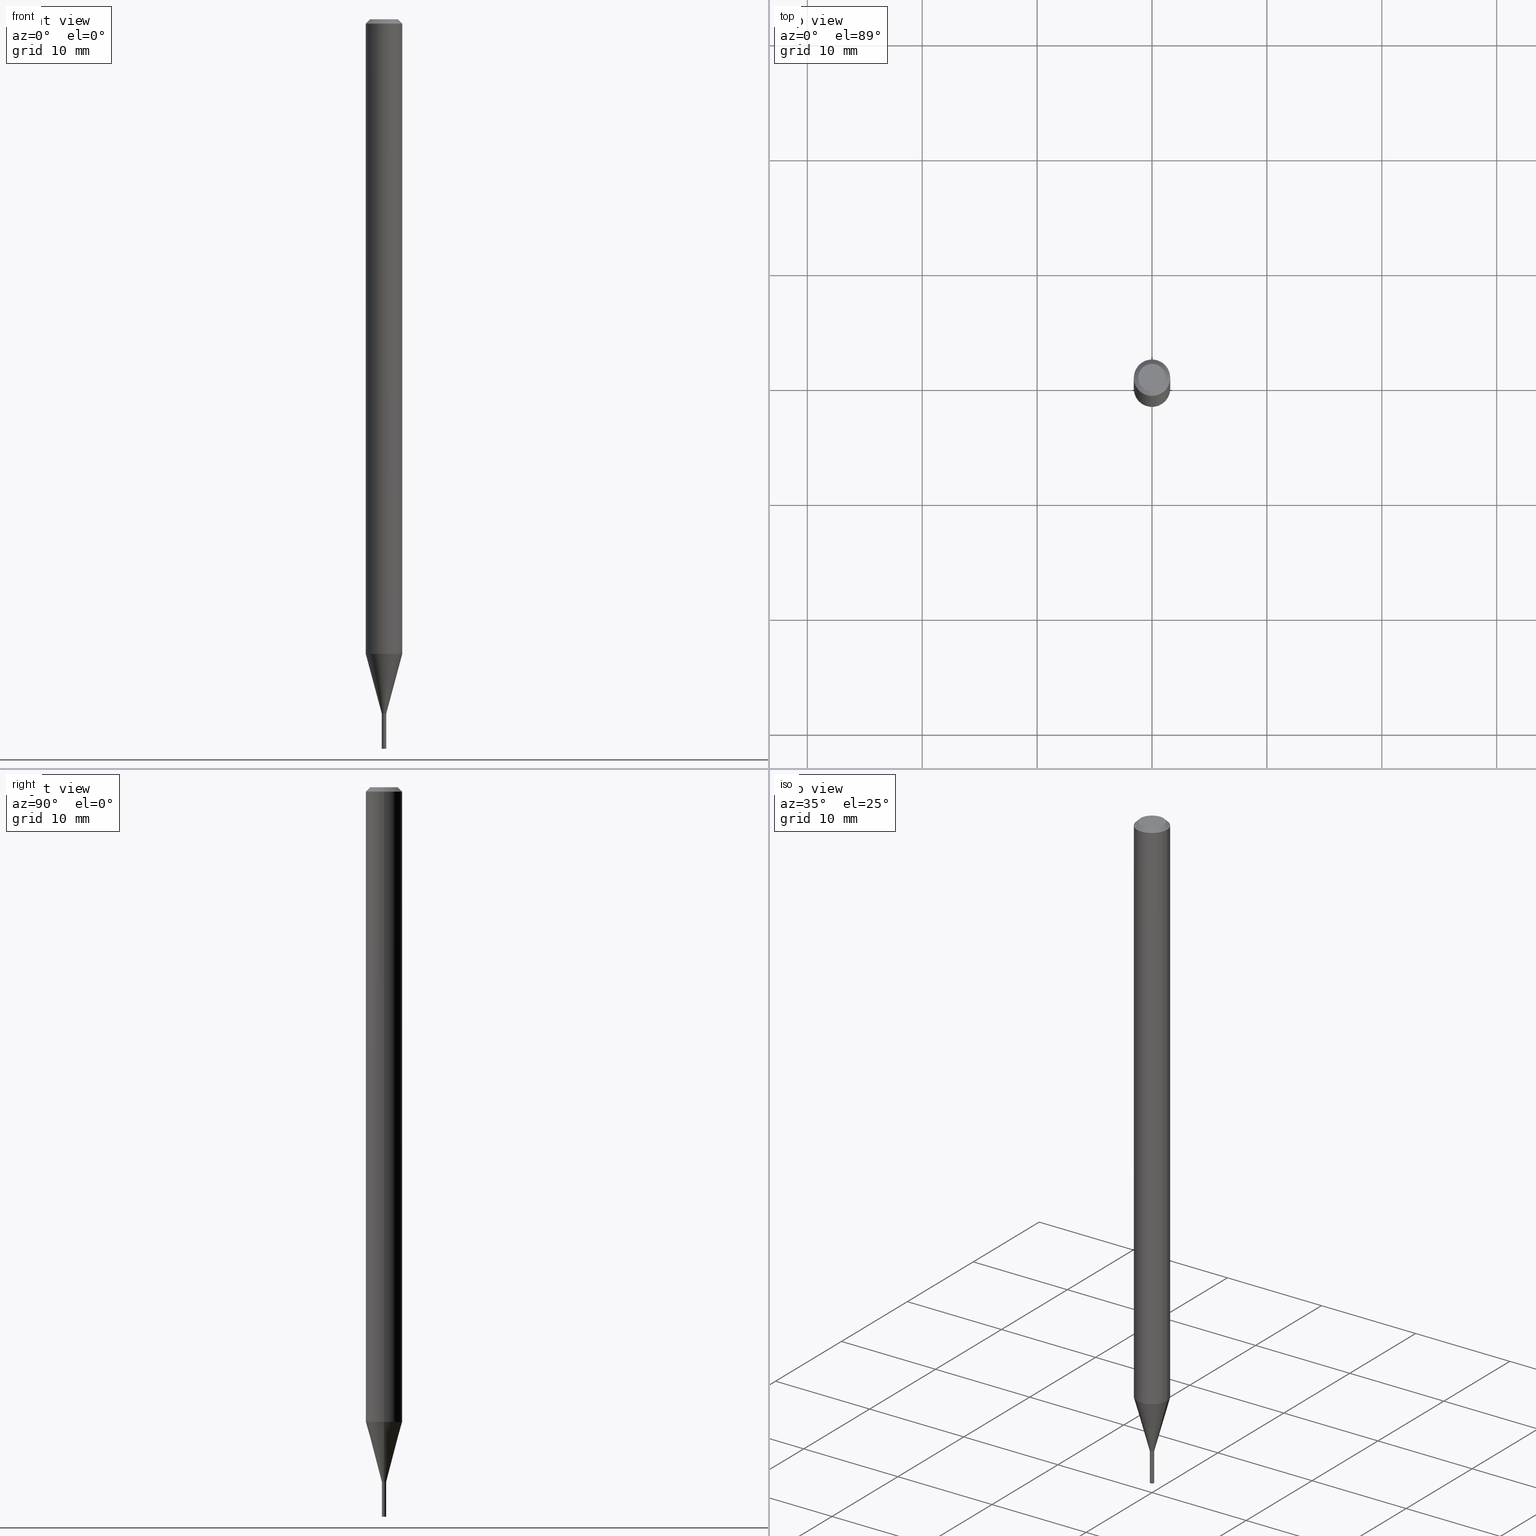
[diagram: canonical four-view strip — front | top / right | iso, engineering-drawing reading convention]
A machine part, canonical four-view strip (front | top / right | iso — engineering-drawing reading convention). The complete STEP part file that produces these views, byte-faithful:
ISO-10303-21;
HEADER;
FILE_DESCRIPTION (( 'STEP AP203' ),
    '1' );
FILE_NAME ('01256.STEP',
    '2024-03-20T00:38:12',
    ( '' ),
    ( '' ),
    'SwSTEP 2.0',
    'SolidWorks 2023',
    '' );
FILE_SCHEMA (( 'CONFIG_CONTROL_DESIGN' ));
ENDSEC;

DATA;
#1 = CARTESIAN_POINT ( 'NONE',  ( 0.06250000000000000000, -4.811533449433679005E-16, -0.01499999999999999944 ) ) ;
#2 = AXIS2_PLACEMENT_3D ( 'NONE', #89, #336, #120 ) ;
#3 = AXIS2_PLACEMENT_3D ( 'NONE', #324, #285, #396 ) ;
#4 = DIRECTION ( 'NONE',  ( 1.000000000000000000, -6.982962677686214646E-15, 0.000000000000000000 ) ) ;
#5 = ADVANCED_FACE ( 'NONE', ( #184 ), #182, .T. ) ;
#6 = DIRECTION ( 'NONE',  ( 1.000000000000000000, -6.982962677686262766E-15, 0.000000000000000000 ) ) ;
#7 = DIRECTION ( 'NONE',  ( -2.445468806185136877E-29, 3.491481338843145188E-15, 1.000000000000000000 ) ) ;
#8 = AXIS2_PLACEMENT_3D ( 'NONE', #72, #387, #30 ) ;
#9 = VERTEX_POINT ( 'NONE', #189 ) ;
#10 = LOCAL_TIME ( 20, 38, 12.00000000000000000, #297 ) ;
#11 = PERSON_AND_ORGANIZATION ( #257, #183 ) ;
#12 = DIRECTION ( 'NONE',  ( -2.445468806185136597E-29, 3.491481338843145583E-15, 1.000000000000000000 ) ) ;
#13 = DATE_AND_TIME ( #331, #458 ) ;
#14 = LOCAL_TIME ( 20, 38, 12.00000000000000000, #125 ) ;
#15 = DIRECTION ( 'NONE',  ( 1.000000000000000000, -6.982962677686266711E-15, 0.000000000000000000 ) ) ;
#16 = EDGE_LOOP ( 'NONE', ( #339, #265, #446, #136 ) ) ;
#17 = ORIENTED_EDGE ( 'NONE', *, *, #121, .T. ) ;
#18 = DIRECTION ( 'NONE',  ( 2.438088387897960049E-29, -3.491481338843145188E-15, -1.000000000000000000 ) ) ;
#19 = ORIENTED_EDGE ( 'NONE', *, *, #121, .F. ) ;
#20 = MANIFOLD_SOLID_BREP ( 'Body-Move/Copy2[1]', #157 ) ;
#21 = CARTESIAN_POINT ( 'NONE',  ( 3.668203209277705088E-31, -5.237222008264718399E-17, -0.01499999999999999944 ) ) ;
#22 = ORIENTED_EDGE ( 'NONE', *, *, #139, .F. ) ;
#23 = PLANE ( 'NONE',  #81 ) ;
#24 = MANIFOLD_SOLID_BREP ( 'Body-Move/Copy2[2]', #282 ) ;
#25 = PLANE ( 'NONE',  #105 ) ;
#26 = VERTEX_POINT ( 'NONE', #338 ) ;
#27 = ADVANCED_FACE ( 'NONE', ( #466 ), #245, .F. ) ;
#28 = ORIENTED_EDGE ( 'NONE', *, *, #420, .F. ) ;
#29 = CARTESIAN_POINT ( 'NONE',  ( 3.668203209277705088E-31, -5.237222008264718399E-17, -0.01499999999999999944 ) ) ;
#30 = DIRECTION ( 'NONE',  ( 1.000000000000000000, -6.982962677686262766E-15, 0.000000000000000000 ) ) ;
#31 = EDGE_CURVE ( 'NONE', #376, #128, #202, .T. ) ;
#32 = ORIENTED_EDGE ( 'NONE', *, *, #75, .T. ) ;
#33 = DIRECTION ( 'NONE',  ( 1.000000000000000000, -6.982962677686216223E-15, 0.000000000000000000 ) ) ;
#34 = AXIS2_PLACEMENT_3D ( 'NONE', #426, #316, #65 ) ;
#35 = CIRCLE ( 'NONE', #231, 0.007499999999999999722 ) ;
#36 = ORIENTED_EDGE ( 'NONE', *, *, #379, .T. ) ;
#37 = FACE_OUTER_BOUND ( 'NONE', #194, .T. ) ;
#38 = ORIENTED_EDGE ( 'NONE', *, *, #113, .F. ) ;
#39 = CARTESIAN_POINT ( 'NONE',  ( 0.006999999999999999278, -8.358606325190491987E-15, -2.380000000000000338 ) ) ;
#40 = CARTESIAN_POINT ( 'NONE',  ( 5.820215758720625190E-29, -8.309725586446686731E-15, -2.379999999999999893 ) ) ;
#41 = LOCAL_TIME ( 20, 38, 12.00000000000000000, #288 ) ;
#42 = DIRECTION ( 'NONE',  ( 1.000000000000000000, -6.982962677686267499E-15, 4.876176775795936353E-29 ) ) ;
#43 = DIRECTION ( 'NONE',  ( 1.000000000000000000, -6.982962677686265922E-15, 4.876176775795935232E-29 ) ) ;
#44 = DIRECTION ( 'NONE',  ( 1.000000000000000000, -6.982962677686216223E-15, 0.000000000000000000 ) ) ;
#45 = SHAPE_DEFINITION_REPRESENTATION ( #327, #101 ) ;
#46 = EDGE_CURVE ( 'NONE', #109, #424, #222, .T. ) ;
#47 = CARTESIAN_POINT ( 'NONE',  ( 0.007499999999999999722, -8.362097806529333416E-15, -2.379999999999999893 ) ) ;
#48 = CIRCLE ( 'NONE', #61, 0.06250000000000000000 ) ;
#49 = MECHANICAL_CONTEXT ( 'NONE', #425, 'mechanical' ) ;
#50 = CALENDAR_DATE ( 2024, 19, 3 ) ;
#51 = DATE_AND_TIME ( #263, #41 ) ;
#52 = ORIENTED_EDGE ( 'NONE', *, *, #55, .F. ) ;
#53 = PERSON_AND_ORGANIZATION_ROLE ( 'design_supplier' ) ;
#54 = AXIS2_PLACEMENT_3D ( 'NONE', #79, #227, #258 ) ;
#55 = EDGE_CURVE ( 'NONE', #64, #242, #412, .T. ) ;
#56 = FACE_OUTER_BOUND ( 'NONE', #63, .T. ) ;
#57 = ORIENTED_EDGE ( 'NONE', *, *, #211, .T. ) ;
#58 = ADVANCED_FACE ( 'NONE', ( #348 ), #25, .F. ) ;
#59 = CARTESIAN_POINT ( 'NONE',  ( -0.06249999999999999306, -7.148965160333359965E-15, -2.174737205583713084 ) ) ;
#60 = DIRECTION ( 'NONE',  ( -2.445468806185136597E-29, 3.491481338843145583E-15, 1.000000000000000000 ) ) ;
#61 = AXIS2_PLACEMENT_3D ( 'NONE', #246, #436, #6 ) ;
#62 = DIRECTION ( 'NONE',  ( -1.000000000000000000, 6.982962677686266711E-15, 0.000000000000000000 ) ) ;
#63 = EDGE_LOOP ( 'NONE', ( #133, #17 ) ) ;
#64 = VERTEX_POINT ( 'NONE', #215 ) ;
#65 = DIRECTION ( 'NONE',  ( 1.000000000000000000, -6.982962677686266711E-15, 4.876176775795935793E-29 ) ) ;
#66 = ADVANCED_FACE ( 'NONE', ( #132 ), #255, .T. ) ;
#67 = DIRECTION ( 'NONE',  ( -2.438088387897960049E-29, 3.491481338843145188E-15, 1.000000000000000000 ) ) ;
#68 = EDGE_CURVE ( 'NONE', #100, #26, #97, .T. ) ;
#69 = DIRECTION ( 'NONE',  ( 1.000000000000000000, -6.982962677686216223E-15, 0.000000000000000000 ) ) ;
#70 = DIRECTION ( 'NONE',  ( -2.445468806185136597E-29, 3.491481338843145583E-15, 1.000000000000000000 ) ) ;
#71 = AXIS2_PLACEMENT_3D ( 'NONE', #276, #451, #415 ) ;
#72 = CARTESIAN_POINT ( 'NONE',  ( 5.318251997905203025E-29, -7.593054370183424159E-15, -2.174737205583713084 ) ) ;
#73 = VECTOR ( 'NONE', #7, 39.37007874015748143 ) ;
#74 = CARTESIAN_POINT ( 'NONE',  ( 0.007500000000000195746, -8.360352065859914279E-15, -2.379500000000000171 ) ) ;
#75 = EDGE_CURVE ( 'NONE', #128, #376, #80, .T. ) ;
#76 = LENGTH_MEASURE_WITH_UNIT ( LENGTH_MEASURE( 0.02539999999999999897 ), #358 );
#77 = AXIS2_PLACEMENT_3D ( 'NONE', #342, #243, #461 ) ;
#78 =( NAMED_UNIT ( * ) SI_UNIT ( $, .STERADIAN. ) SOLID_ANGLE_UNIT ( ) );
#79 = CARTESIAN_POINT ( 'NONE',  ( 0.000000000000000000, 0.000000000000000000, 0.000000000000000000 ) ) ;
#80 = CIRCLE ( 'NONE', #148, 0.007500000000000195746 ) ;
#81 = AXIS2_PLACEMENT_3D ( 'NONE', #141, #18, #165 ) ;
#82 = UNCERTAINTY_MEASURE_WITH_UNIT (LENGTH_MEASURE( 1.000000000000000082E-05 ), #196, 'distance_accuracy_value', 'NONE');
#83 = LINE ( 'NONE', #154, #115 ) ;
#84 = EDGE_CURVE ( 'NONE', #445, #128, #281, .T. ) ;
#85 = CALENDAR_DATE ( 2024, 19, 3 ) ;
#86 = EDGE_LOOP ( 'NONE', ( #389, #273, #36, #455 ) ) ;
#87 = AXIS2_PLACEMENT_3D ( 'NONE', #29, #382, #62 ) ;
#88 = DIMENSIONAL_EXPONENTS ( 1.000000000000000000, 0.000000000000000000, 0.000000000000000000, 0.000000000000000000, 0.000000000000000000, 0.000000000000000000, 0.000000000000000000 ) ;
#89 = CARTESIAN_POINT ( 'NONE',  ( 0.000000000000000000, 0.000000000000000000, 0.000000000000000000 ) ) ;
#90 = ORIENTED_EDGE ( 'NONE', *, *, #31, .T. ) ;
#91 = FACE_OUTER_BOUND ( 'NONE', #444, .T. ) ;
#92 = ORIENTED_EDGE ( 'NONE', *, *, #139, .T. ) ;
#93 = CARTESIAN_POINT ( 'NONE',  ( 0.007500000000000195746, -5.237222008264836111E-17, 3.657132581847046783E-31 ) ) ;
#94 = ORIENTED_EDGE ( 'NONE', *, *, #113, .T. ) ;
#95 = ORIENTED_EDGE ( 'NONE', *, *, #405, .T. ) ;
#96 = ADVANCED_FACE ( 'NONE', ( #363 ), #332, .T. ) ;
#97 = CIRCLE ( 'NONE', #300, 0.007499999999999999722 ) ;
#98 = DIRECTION ( 'NONE',  ( 0.2588190451025213501, 1.565188264969621968E-15, 0.9659258262890682012 ) ) ;
#99 = CARTESIAN_POINT ( 'NONE',  ( 5.820215758720626311E-29, -8.309725586446688309E-15, -2.380000000000000338 ) ) ;
#100 = VERTEX_POINT ( 'NONE', #47 ) ;
#101 = ADVANCED_BREP_SHAPE_REPRESENTATION ( '01256', ( #20, #24, #54 ), #213 ) ;
#102 = CARTESIAN_POINT ( 'NONE',  ( 5.820215758720625190E-29, -8.309725586446686731E-15, -2.379999999999999893 ) ) ;
#103 = CARTESIAN_POINT ( 'NONE',  ( 5.820215758720625190E-29, -8.309725586446686731E-15, -2.379999999999999893 ) ) ;
#104 = CARTESIAN_POINT ( 'NONE',  ( -0.06250000000000000000, 3.840629472727444916E-16, -0.01499999999999999944 ) ) ;
#105 = AXIS2_PLACEMENT_3D ( 'NONE', #272, #67, #423 ) ;
#106 = APPROVAL_PERSON_ORGANIZATION ( #221, #371, #443 ) ;
#107 = CARTESIAN_POINT ( 'NONE',  ( -0.007500000000000195746, 5.329070518200890480E-17, -3.689201317691275606E-31 ) ) ;
#108 = EDGE_CURVE ( 'NONE', #308, #9, #193, .T. ) ;
#109 = VERTEX_POINT ( 'NONE', #223 ) ;
#110 = CARTESIAN_POINT ( 'NONE',  ( 0.000000000000000000, 0.000000000000000000, 0.000000000000000000 ) ) ;
#111 = CYLINDRICAL_SURFACE ( 'NONE', #302, 0.007499999999999999722 ) ;
#112 = APPLICATION_CONTEXT ( 'configuration controlled 3d designs of mechanical parts and assemblies' ) ;
#113 = EDGE_CURVE ( 'NONE', #417, #376, #83, .T. ) ;
#114 = FACE_OUTER_BOUND ( 'NONE', #199, .T. ) ;
#115 = VECTOR ( 'NONE', #368, 39.37007874015748143 ) ;
#116 = VECTOR ( 'NONE', #180, 39.37007874015748143 ) ;
#117 = APPROVAL_ROLE ( '' ) ;
#118 = CC_DESIGN_PERSON_AND_ORGANIZATION_ASSIGNMENT ( #156, #123, ( #239 ) ) ;
#119 = PERSON_AND_ORGANIZATION ( #257, #183 ) ;
#120 = DIRECTION ( 'NONE',  ( 1.000000000000000000, -6.982962677686266711E-15, 4.876176775795935793E-29 ) ) ;
#121 = EDGE_CURVE ( 'NONE', #209, #414, #360, .T. ) ;
#122 = CIRCLE ( 'NONE', #77, 0.06250000000000000000 ) ;
#123 = PERSON_AND_ORGANIZATION_ROLE ( 'classification_officer' ) ;
#124 = PRODUCT_RELATED_PRODUCT_CATEGORY ( 'detail', '', ( #290 ) ) ;
#125 = COORDINATED_UNIVERSAL_TIME_OFFSET ( 5, 0, .BEHIND. ) ;
#126 = ORIENTED_EDGE ( 'NONE', *, *, #410, .F. ) ;
#127 = DESIGN_CONTEXT ( 'detailed design', #112, 'design' ) ;
#128 = VERTEX_POINT ( 'NONE', #198 ) ;
#129 = VECTOR ( 'NONE', #217, 39.37007874015747433 ) ;
#130 = CYLINDRICAL_SURFACE ( 'NONE', #34, 0.06250000000000000000 ) ;
#131 = APPROVAL ( #373, 'UNSPECIFIED' ) ;
#132 = FACE_OUTER_BOUND ( 'NONE', #232, .T. ) ;
#133 = ORIENTED_EDGE ( 'NONE', *, *, #441, .T. ) ;
#134 = DIRECTION ( 'NONE',  ( -2.445468806185136597E-29, 3.491481338843145583E-15, 1.000000000000000000 ) ) ;
#135 = DIRECTION ( 'NONE',  ( -2.445468806185136597E-29, 3.491481338843145583E-15, 1.000000000000000000 ) ) ;
#136 = ORIENTED_EDGE ( 'NONE', *, *, #309, .F. ) ;
#137 = CONICAL_SURFACE ( 'NONE', #413, 0.006999999999999999278, 0.7853981633974718157 ) ;
#138 = FACE_OUTER_BOUND ( 'NONE', #86, .T. ) ;
#139 = EDGE_CURVE ( 'NONE', #174, #417, #229, .T. ) ;
#140 = ORIENTED_EDGE ( 'NONE', *, *, #359, .T. ) ;
#141 = CARTESIAN_POINT ( 'NONE',  ( 3.316907271900976096E-16, 0.04749999999999999362, 1.250963203541518394E-15 ) ) ;
#142 = DIRECTION ( 'NONE',  ( -2.445468806185136597E-29, 3.491481338843145583E-15, 1.000000000000000000 ) ) ;
#143 = ORIENTED_EDGE ( 'NONE', *, *, #345, .F. ) ;
#144 = FACE_OUTER_BOUND ( 'NONE', #230, .T. ) ;
#145 = EDGE_CURVE ( 'NONE', #242, #9, #169, .T. ) ;
#146 = EDGE_LOOP ( 'NONE', ( #178, #268, #234, #38 ) ) ;
#147 = CARTESIAN_POINT ( 'NONE',  ( 5.820215758720626311E-29, -8.309725586446688309E-15, -2.380000000000000338 ) ) ;
#148 = AXIS2_PLACEMENT_3D ( 'NONE', #312, #437, #4 ) ;
#149 = AXIS2_PLACEMENT_3D ( 'NONE', #286, #401, #214 ) ;
#150 = CARTESIAN_POINT ( 'NONE',  ( 0.000000000000000000, 0.000000000000000000, 0.000000000000000000 ) ) ;
#151 = CARTESIAN_POINT ( 'NONE',  ( -0.007499999999999999722, 5.329070518200751197E-17, -3.689201317691179266E-31 ) ) ;
#152 = FACE_OUTER_BOUND ( 'NONE', #315, .T. ) ;
#153 = AXIS2_PLACEMENT_3D ( 'NONE', #191, #160, #44 ) ;
#154 = CARTESIAN_POINT ( 'NONE',  ( 0.006999999999999999278, -8.358606325190491987E-15, -2.380000000000000338 ) ) ;
#155 = PERSON_AND_ORGANIZATION_ROLE ( 'creator' ) ;
#156 = PERSON_AND_ORGANIZATION ( #257, #183 ) ;
#157 = CLOSED_SHELL ( 'NONE', ( #442, #58, #432, #218 ) ) ;
#158 = AXIS2_PLACEMENT_3D ( 'NONE', #392, #70, #356 ) ;
#159 =( NAMED_UNIT ( * ) PLANE_ANGLE_UNIT ( ) SI_UNIT ( $, .RADIAN. ) );
#160 = DIRECTION ( 'NONE',  ( -2.445468806185136597E-29, 3.491481338843145583E-15, 1.000000000000000000 ) ) ;
#161 = ORIENTED_EDGE ( 'NONE', *, *, #46, .F. ) ;
#162 = ADVANCED_FACE ( 'NONE', ( #299 ), #130, .T. ) ;
#163 = APPROVAL_DATE_TIME ( #404, #131 ) ;
#164 = ORIENTED_EDGE ( 'NONE', *, *, #84, .T. ) ;
#165 = DIRECTION ( 'NONE',  ( -1.000000000000000000, 6.982962677686265922E-15, -4.876176775795935793E-29 ) ) ;
#166 = CONICAL_SURFACE ( 'NONE', #367, 0.007500000000000194011, 0.2617993877991500740 ) ;
#167 = FACE_OUTER_BOUND ( 'NONE', #346, .T. ) ;
#168 = ORIENTED_EDGE ( 'NONE', *, *, #405, .F. ) ;
#169 = LINE ( 'NONE', #172, #394 ) ;
#170 = ORIENTED_EDGE ( 'NONE', *, *, #145, .T. ) ;
#171 = EDGE_LOOP ( 'NONE', ( #296, #57, #270, #126 ) ) ;
#172 = CARTESIAN_POINT ( 'NONE',  ( -0.06250000000000000000, 4.440892098500626162E-16, -3.074334431409316114E-30 ) ) ;
#173 = CC_DESIGN_DATE_AND_TIME_ASSIGNMENT ( #51, #335, ( #239 ) ) ;
#174 = VERTEX_POINT ( 'NONE', #271 ) ;
#175 = CIRCLE ( 'NONE', #434, 0.007500000000000194011 ) ;
#176 = VECTOR ( 'NONE', #398, 39.37007874015748143 ) ;
#177 = DIRECTION ( 'NONE',  ( 1.000000000000000000, -6.982962677686333764E-15, 0.000000000000000000 ) ) ;
#178 = ORIENTED_EDGE ( 'NONE', *, *, #345, .T. ) ;
#179 = CARTESIAN_POINT ( 'NONE',  ( -0.007500000000000194011, -7.702700020799019370E-15, -2.379999999999999893 ) ) ;
#180 = DIRECTION ( 'NONE',  ( -0.7071067811865642261, 7.493145998870414114E-15, 0.7071067811865309194 ) ) ;
#181 = DIRECTION ( 'NONE',  ( -2.445468806185136597E-29, 3.491481338843145583E-15, 1.000000000000000000 ) ) ;
#182 = CONICAL_SURFACE ( 'NONE', #153, 0.007500000000000194011, 0.2617993877991500740 ) ;
#183 = ORGANIZATION ( 'UNSPECIFIED', 'UNSPECIFIED', '' ) ;
#184 = FACE_OUTER_BOUND ( 'NONE', #171, .T. ) ;
#185 = DIRECTION ( 'NONE',  ( -2.445468806185136597E-29, 3.491481338843145583E-15, 1.000000000000000000 ) ) ;
#186 = CARTESIAN_POINT ( 'NONE',  ( -0.006999999999999999278, -8.259987594943480463E-15, -2.380000000000000338 ) ) ;
#187 = APPROVAL_ROLE ( '' ) ;
#188 = VECTOR ( 'NONE', #325, 39.37007874015748143 ) ;
#189 = CARTESIAN_POINT ( 'NONE',  ( -0.06250000000000000000, -3.378624085282973200E-15, -0.01499999999999999944 ) ) ;
#190 = PERSON_AND_ORGANIZATION_ROLE ( 'creator' ) ;
#191 = CARTESIAN_POINT ( 'NONE',  ( 5.820215758720625190E-29, -8.309725586446686731E-15, -2.379999999999999893 ) ) ;
#192 = EDGE_CURVE ( 'NONE', #355, #445, #274, .T. ) ;
#193 = CIRCLE ( 'NONE', #438, 0.06250000000000000000 ) ;
#194 = EDGE_LOOP ( 'NONE', ( #298, #205, #266, #341 ) ) ;
#195 = AXIS2_PLACEMENT_3D ( 'NONE', #21, #351, #269 ) ;
#196 =( CONVERSION_BASED_UNIT ( 'INCH', #76 ) LENGTH_UNIT ( ) NAMED_UNIT ( #88 ) );
#197 = EDGE_LOOP ( 'NONE', ( #143, #22 ) ) ;
#198 = CARTESIAN_POINT ( 'NONE',  ( -0.007500000000000195746, -8.254689140595256483E-15, -2.379500000000000171 ) ) ;
#199 = EDGE_LOOP ( 'NONE', ( #306, #459, #460, #90 ) ) ;
#200 = DIRECTION ( 'NONE',  ( -2.445468806185136597E-29, 3.491481338843145583E-15, 1.000000000000000000 ) ) ;
#201 = ORIENTED_EDGE ( 'NONE', *, *, #68, .T. ) ;
#202 = CIRCLE ( 'NONE', #247, 0.007500000000000195746 ) ;
#203 = DIRECTION ( 'NONE',  ( -2.445468806185136597E-29, 3.491481338843145583E-15, 1.000000000000000000 ) ) ;
#204 = CARTESIAN_POINT ( 'NONE',  ( 6.113672015462842613E-29, -8.728703347107864943E-15, -2.500000000000000000 ) ) ;
#205 = ORIENTED_EDGE ( 'NONE', *, *, #350, .T. ) ;
#206 = ORIENTED_EDGE ( 'NONE', *, *, #108, .F. ) ;
#207 = LINE ( 'NONE', #236, #430 ) ;
#208 = DIRECTION ( 'NONE',  ( 1.000000000000000000, -6.982962677686268288E-15, 0.000000000000000000 ) ) ;
#209 = VERTEX_POINT ( 'NONE', #447 ) ;
#210 = CARTESIAN_POINT ( 'NONE',  ( 5.820215758720625190E-29, -8.309725586446686731E-15, -2.379999999999999893 ) ) ;
#211 = EDGE_CURVE ( 'NONE', #445, #355, #175, .T. ) ;
#212 = AXIS2_PLACEMENT_3D ( 'NONE', #99, #301, #416 ) ;
#213 =( GEOMETRIC_REPRESENTATION_CONTEXT ( 3 ) GLOBAL_UNCERTAINTY_ASSIGNED_CONTEXT ( ( #82 ) ) GLOBAL_UNIT_ASSIGNED_CONTEXT ( ( #196, #159, #78 ) ) REPRESENTATION_CONTEXT ( 'NONE', 'WORKASPACE' ) );
#214 = DIRECTION ( 'NONE',  ( 1.000000000000000000, -6.982962677686267499E-15, 4.876176775795936353E-29 ) ) ;
#215 = CARTESIAN_POINT ( 'NONE',  ( 0.06249999999999999306, -8.029489537538814251E-15, -2.174737205583713084 ) ) ;
#216 = CARTESIAN_POINT ( 'NONE',  ( -0.04749999999999999362, 3.578768372314260303E-16, 2.833617134273133115E-15 ) ) ;
#217 = DIRECTION ( 'NONE',  ( -0.2588190451025213501, 5.211531920934551042E-15, 0.9659258262890682012 ) ) ;
#218 = ADVANCED_FACE ( 'NONE', ( #453 ), #422, .F. ) ;
#219 = APPROVAL_PERSON_ORGANIZATION ( #407, #406, #117 ) ;
#220 = DIRECTION ( 'NONE',  ( -2.445468806185136597E-29, 3.491481338843145583E-15, 1.000000000000000000 ) ) ;
#221 = PERSON_AND_ORGANIZATION ( #257, #183 ) ;
#222 = CIRCLE ( 'NONE', #292, 0.007499999999999999722 ) ;
#223 = CARTESIAN_POINT ( 'NONE',  ( 0.007499999999999999722, -8.781075567190511627E-15, -2.500000000000000000 ) ) ;
#224 = PERSON_AND_ORGANIZATION ( #257, #183 ) ;
#225 = CARTESIAN_POINT ( 'NONE',  ( -6.929522310536673502E-44, 9.893521345740843452E-30, 2.833617134273135482E-15 ) ) ;
#226 = ADVANCED_FACE ( 'NONE', ( #91 ), #166, .T. ) ;
#227 = DIRECTION ( 'NONE',  ( 0.000000000000000000, 0.000000000000000000, 1.000000000000000000 ) ) ;
#228 = EDGE_CURVE ( 'NONE', #109, #100, #233, .T. ) ;
#229 = CIRCLE ( 'NONE', #374, 0.006999999999999999278 ) ;
#230 = EDGE_LOOP ( 'NONE', ( #343, #164, #32, #421 ) ) ;
#231 = AXIS2_PLACEMENT_3D ( 'NONE', #311, #200, #378 ) ;
#232 = EDGE_LOOP ( 'NONE', ( #28, #92, #94, #411 ) ) ;
#233 = LINE ( 'NONE', #390, #256 ) ;
#234 = ORIENTED_EDGE ( 'NONE', *, *, #31, .F. ) ;
#235 = EDGE_CURVE ( 'NONE', #424, #109, #35, .T. ) ;
#236 = CARTESIAN_POINT ( 'NONE',  ( 0.06250000000000000000, -4.364351673553916694E-16, 3.047610484872459871E-30 ) ) ;
#237 = EDGE_LOOP ( 'NONE', ( #161, #384 ) ) ;
#238 = AXIS2_PLACEMENT_3D ( 'NONE', #225, #427, #386 ) ;
#239 = SECURITY_CLASSIFICATION ( '', '', #370 ) ;
#240 = CC_DESIGN_DATE_AND_TIME_ASSIGNMENT ( #13, #326, ( #278 ) ) ;
#241 = DIRECTION ( 'NONE',  ( -2.445468806185136877E-29, 3.491481338843145188E-15, 1.000000000000000000 ) ) ;
#242 = VERTEX_POINT ( 'NONE', #59 ) ;
#243 = DIRECTION ( 'NONE',  ( -2.445468806185136597E-29, 3.491481338843145583E-15, 1.000000000000000000 ) ) ;
#244 = ADVANCED_FACE ( 'NONE', ( #167 ), #293, .T. ) ;
#245 = PLANE ( 'NONE',  #457 ) ;
#246 = CARTESIAN_POINT ( 'NONE',  ( 5.318251997905203025E-29, -7.593054370183424159E-15, -2.174737205583713084 ) ) ;
#247 = AXIS2_PLACEMENT_3D ( 'NONE', #380, #463, #454 ) ;
#248 = CIRCLE ( 'NONE', #158, 0.04749999999999999362 ) ;
#249 = DIRECTION ( 'NONE',  ( 1.000000000000000000, -6.982962677686268288E-15, 0.000000000000000000 ) ) ;
#250 = DIRECTION ( 'NONE',  ( -2.445468806185136597E-29, 3.491481338843145583E-15, 1.000000000000000000 ) ) ;
#251 = EDGE_CURVE ( 'NONE', #355, #376, #418, .T. ) ;
#252 = LINE ( 'NONE', #1, #176 ) ;
#253 = DIRECTION ( 'NONE',  ( -2.445468806185136877E-29, 3.491481338843145188E-15, 1.000000000000000000 ) ) ;
#254 = LINE ( 'NONE', #186, #116 ) ;
#255 = CONICAL_SURFACE ( 'NONE', #212, 0.006999999999999999278, 0.7853981633974718157 ) ;
#256 = VECTOR ( 'NONE', #456, 39.37007874015748143 ) ;
#257 = PERSON ( 'UNSPECIFIED', 'UNSPECIFIED', 'UNSPECIFIED', ('UNSPECIFIED'), ('UNSPECIFIED'), ('UNSPECIFIED') ) ;
#258 = DIRECTION ( 'NONE',  ( 1.000000000000000000, 0.000000000000000000, 0.000000000000000000 ) ) ;
#259 = EDGE_CURVE ( 'NONE', #355, #64, #347, .T. ) ;
#260 = COORDINATED_UNIVERSAL_TIME_OFFSET ( 5, 0, .BEHIND. ) ;
#261 = PERSON_AND_ORGANIZATION ( #257, #183 ) ;
#262 = AXIS2_PLACEMENT_3D ( 'NONE', #465, #220, #428 ) ;
#263 = CALENDAR_DATE ( 2024, 19, 3 ) ;
#264 = DATE_AND_TIME ( #85, #14 ) ;
#265 = ORIENTED_EDGE ( 'NONE', *, *, #410, .T. ) ;
#266 = ORIENTED_EDGE ( 'NONE', *, *, #68, .F. ) ;
#267 = DIRECTION ( 'NONE',  ( 1.000000000000000000, -6.982962677686216223E-15, 0.000000000000000000 ) ) ;
#268 = ORIENTED_EDGE ( 'NONE', *, *, #420, .T. ) ;
#269 = DIRECTION ( 'NONE',  ( -1.000000000000000000, 6.982962677686266711E-15, 0.000000000000000000 ) ) ;
#270 = ORIENTED_EDGE ( 'NONE', *, *, #259, .T. ) ;
#271 = CARTESIAN_POINT ( 'NONE',  ( -0.006999999999999999278, -8.257338367769368473E-15, -2.380000000000000338 ) ) ;
#272 = CARTESIAN_POINT ( 'NONE',  ( 6.194428952736783458E-29, -8.613054816532157721E-15, -2.500000000000000000 ) ) ;
#273 = ORIENTED_EDGE ( 'NONE', *, *, #441, .F. ) ;
#274 = CIRCLE ( 'NONE', #399, 0.007500000000000194011 ) ;
#275 = CC_DESIGN_APPROVAL ( #406, ( #239 ) ) ;
#276 = CARTESIAN_POINT ( 'NONE',  ( 5.237222008270519608E-17, 0.007499999999991690397, -2.379999999999999893 ) ) ;
#277 = EDGE_LOOP ( 'NONE', ( #372, #170, #206, #388 ) ) ;
#278 = PRODUCT_DEFINITION ( 'UNKNOWN', '', #314, #127 ) ;
#279 = DIRECTION ( 'NONE',  ( -2.445468806185136877E-29, 3.491481338843145188E-15, 1.000000000000000000 ) ) ;
#280 = CYLINDRICAL_SURFACE ( 'NONE', #395, 0.007500000000000195746 ) ;
#281 = LINE ( 'NONE', #107, #313 ) ;
#282 = CLOSED_SHELL ( 'NONE', ( #330, #462, #244, #162, #226, #5, #96, #295, #319, #27, #66, #334 ) ) ;
#283 = LINE ( 'NONE', #284, #129 ) ;
#284 = CARTESIAN_POINT ( 'NONE',  ( -0.007500000000000194011, -8.256434881264677198E-15, -2.379999999999999893 ) ) ;
#285 = DIRECTION ( 'NONE',  ( -2.445468806185136597E-29, 3.491481338843145583E-15, 1.000000000000000000 ) ) ;
#286 = CARTESIAN_POINT ( 'NONE',  ( 0.000000000000000000, 0.000000000000000000, 0.000000000000000000 ) ) ;
#287 = VECTOR ( 'NONE', #98, 39.37007874015747433 ) ;
#288 = COORDINATED_UNIVERSAL_TIME_OFFSET ( 5, 0, .BEHIND. ) ;
#289 = EDGE_CURVE ( 'NONE', #64, #308, #207, .T. ) ;
#290 = PRODUCT ( '01256', '01256', '', ( #49 ) ) ;
#291 = PERSON_AND_ORGANIZATION_ROLE ( 'design_owner' ) ;
#292 = AXIS2_PLACEMENT_3D ( 'NONE', #204, #142, #393 ) ;
#293 = CONICAL_SURFACE ( 'NONE', #195, 0.06250000000000000000, 0.7853981633973539100 ) ;
#294 = APPLICATION_PROTOCOL_DEFINITION ( 'international standard', 'config_control_design', 1994, #425 ) ;
#295 = ADVANCED_FACE ( 'NONE', ( #138 ), #435, .T. ) ;
#296 = ORIENTED_EDGE ( 'NONE', *, *, #359, .F. ) ;
#297 = COORDINATED_UNIVERSAL_TIME_OFFSET ( 5, 0, .BEHIND. ) ;
#298 = ORIENTED_EDGE ( 'NONE', *, *, #46, .T. ) ;
#299 = FACE_OUTER_BOUND ( 'NONE', #277, .T. ) ;
#300 = AXIS2_PLACEMENT_3D ( 'NONE', #352, #60, #208 ) ;
#301 = DIRECTION ( 'NONE',  ( -2.445468806185136597E-29, 3.491481338843145583E-15, 1.000000000000000000 ) ) ;
#302 = AXIS2_PLACEMENT_3D ( 'NONE', #110, #320, #42 ) ;
#303 = ORIENTED_EDGE ( 'NONE', *, *, #235, .T. ) ;
#304 = CIRCLE ( 'NONE', #3, 0.006999999999999999278 ) ;
#305 = DIRECTION ( 'NONE',  ( -2.445468806185136877E-29, 3.491481338843145188E-15, 1.000000000000000000 ) ) ;
#306 = ORIENTED_EDGE ( 'NONE', *, *, #84, .F. ) ;
#307 = DIRECTION ( 'NONE',  ( -2.445468806185136597E-29, 3.491481338843145583E-15, 1.000000000000000000 ) ) ;
#308 = VERTEX_POINT ( 'NONE', #354 ) ;
#309 = EDGE_CURVE ( 'NONE', #9, #308, #122, .T. ) ;
#310 = ORIENTED_EDGE ( 'NONE', *, *, #228, .T. ) ;
#311 = CARTESIAN_POINT ( 'NONE',  ( 6.113672015462842613E-29, -8.728703347107864943E-15, -2.500000000000000000 ) ) ;
#312 = CARTESIAN_POINT ( 'NONE',  ( 5.818993024317532389E-29, -8.307979845777264439E-15, -2.379500000000000171 ) ) ;
#313 = VECTOR ( 'NONE', #253, 39.37007874015748143 ) ;
#314 = PRODUCT_DEFINITION_FORMATION_WITH_SPECIFIED_SOURCE ( 'ANY', '', #290, .NOT_KNOWN. ) ;
#315 = EDGE_LOOP ( 'NONE', ( #385, #303, #310, #168 ) ) ;
#316 = DIRECTION ( 'NONE',  ( -2.445468806185136597E-29, 3.491481338843145583E-15, 1.000000000000000000 ) ) ;
#317 = DIRECTION ( 'NONE',  ( 1.000000000000000000, -6.982962677686265922E-15, 4.876176775795935793E-29 ) ) ;
#318 = FACE_OUTER_BOUND ( 'NONE', #146, .T. ) ;
#319 = ADVANCED_FACE ( 'NONE', ( #56 ), #23, .F. ) ;
#320 = DIRECTION ( 'NONE',  ( -2.445468806185136597E-29, 3.491481338843145583E-15, 1.000000000000000000 ) ) ;
#321 = APPROVAL_PERSON_ORGANIZATION ( #261, #131, #187 ) ;
#322 = LINE ( 'NONE', #151, #73 ) ;
#323 = CC_DESIGN_PERSON_AND_ORGANIZATION_ASSIGNMENT ( #369, #53, ( #314 ) ) ;
#324 = CARTESIAN_POINT ( 'NONE',  ( 5.820215758720626311E-29, -8.309725586446688309E-15, -2.380000000000000338 ) ) ;
#325 = DIRECTION ( 'NONE',  ( -0.7071067811864807373, 2.468850131081557341E-15, -0.7071067811866142971 ) ) ;
#326 = DATE_TIME_ROLE ( 'creation_date' ) ;
#327 = PRODUCT_DEFINITION_SHAPE ( 'NONE', 'NONE',  #278 ) ;
#328 = VECTOR ( 'NONE', #279, 39.37007874015748143 ) ;
#329 = CARTESIAN_POINT ( 'NONE',  ( 3.668203209277705088E-31, -5.237222008264718399E-17, -0.01499999999999999944 ) ) ;
#330 = ADVANCED_FACE ( 'NONE', ( #144 ), #280, .F. ) ;
#331 = CALENDAR_DATE ( 2024, 19, 3 ) ;
#332 = CYLINDRICAL_SURFACE ( 'NONE', #2, 0.06250000000000000000 ) ;
#333 = APPROVAL_STATUS ( 'not_yet_approved' ) ;
#334 = ADVANCED_FACE ( 'NONE', ( #114 ), #357, .F. ) ;
#335 = DATE_TIME_ROLE ( 'classification_date' ) ;
#336 = DIRECTION ( 'NONE',  ( -2.445468806185136597E-29, 3.491481338843145583E-15, 1.000000000000000000 ) ) ;
#337 = CC_DESIGN_PERSON_AND_ORGANIZATION_ASSIGNMENT ( #224, #155, ( #314 ) ) ;
#338 = CARTESIAN_POINT ( 'NONE',  ( -0.007499999999999999722, -8.465923761595268670E-15, -2.379999999999999893 ) ) ;
#339 = ORIENTED_EDGE ( 'NONE', *, *, #145, .F. ) ;
#340 = CALENDAR_DATE ( 2024, 19, 3 ) ;
#341 = ORIENTED_EDGE ( 'NONE', *, *, #228, .F. ) ;
#342 = CARTESIAN_POINT ( 'NONE',  ( 3.668203209277705088E-31, -5.237222008264718399E-17, -0.01499999999999999944 ) ) ;
#343 = ORIENTED_EDGE ( 'NONE', *, *, #211, .F. ) ;
#344 = CARTESIAN_POINT ( 'NONE',  ( 5.820215758720626311E-29, -8.309725586446688309E-15, -2.380000000000000338 ) ) ;
#345 = EDGE_CURVE ( 'NONE', #417, #174, #304, .T. ) ;
#346 = EDGE_LOOP ( 'NONE', ( #19, #464, #419, #353 ) ) ;
#347 = LINE ( 'NONE', #377, #287 ) ;
#348 = FACE_OUTER_BOUND ( 'NONE', #237, .T. ) ;
#349 = ORIENTED_EDGE ( 'NONE', *, *, #192, .T. ) ;
#350 = EDGE_CURVE ( 'NONE', #424, #26, #322, .T. ) ;
#351 = DIRECTION ( 'NONE',  ( 2.445468806185136597E-29, -3.491481338843145583E-15, -1.000000000000000000 ) ) ;
#352 = CARTESIAN_POINT ( 'NONE',  ( 5.820215758720625190E-29, -8.309725586446686731E-15, -2.379999999999999893 ) ) ;
#353 = ORIENTED_EDGE ( 'NONE', *, *, #379, .F. ) ;
#354 = CARTESIAN_POINT ( 'NONE',  ( 0.06250000000000000000, -4.888073874380388472E-16, -0.01499999999999999944 ) ) ;
#355 = VERTEX_POINT ( 'NONE', #362 ) ;
#356 = DIRECTION ( 'NONE',  ( 1.000000000000000000, -6.982962677686267499E-15, 5.108144071313017768E-29 ) ) ;
#357 = CYLINDRICAL_SURFACE ( 'NONE', #262, 0.007500000000000195746 ) ;
#358 =( LENGTH_UNIT ( ) NAMED_UNIT ( * ) SI_UNIT ( $, .METRE. ) );
#359 = EDGE_CURVE ( 'NONE', #445, #242, #283, .T. ) ;
#360 = CIRCLE ( 'NONE', #238, 0.04749999999999999362 ) ;
#361 = CIRCLE ( 'NONE', #448, 0.007499999999999999722 ) ;
#362 = CARTESIAN_POINT ( 'NONE',  ( 0.007500000000000194011, -8.362097806529334994E-15, -2.379999999999999893 ) ) ;
#363 = FACE_OUTER_BOUND ( 'NONE', #16, .T. ) ;
#364 = LINE ( 'NONE', #104, #188 ) ;
#365 = APPROVAL_STATUS ( 'not_yet_approved' ) ;
#366 = APPLICATION_PROTOCOL_DEFINITION ( 'international standard', 'config_control_design', 1994, #112 ) ;
#367 = AXIS2_PLACEMENT_3D ( 'NONE', #103, #203, #33 ) ;
#368 = DIRECTION ( 'NONE',  ( 0.7071067811865642261, -2.468850131082431399E-15, 0.7071067811865309194 ) ) ;
#369 = PERSON_AND_ORGANIZATION ( #257, #183 ) ;
#370 = SECURITY_CLASSIFICATION_LEVEL ( 'unclassified' ) ;
#371 = APPROVAL ( #333, 'UNSPECIFIED' ) ;
#372 = ORIENTED_EDGE ( 'NONE', *, *, #55, .T. ) ;
#373 = APPROVAL_STATUS ( 'not_yet_approved' ) ;
#374 = AXIS2_PLACEMENT_3D ( 'NONE', #344, #134, #177 ) ;
#375 = CC_DESIGN_SECURITY_CLASSIFICATION ( #239, ( #314 ) ) ;
#376 = VERTEX_POINT ( 'NONE', #74 ) ;
#377 = CARTESIAN_POINT ( 'NONE',  ( 0.007500000000000194011, -8.362097806529334994E-15, -2.379999999999999893 ) ) ;
#378 = DIRECTION ( 'NONE',  ( 1.000000000000000000, -6.982962677686268288E-15, 0.000000000000000000 ) ) ;
#379 = EDGE_CURVE ( 'NONE', #414, #9, #364, .T. ) ;
#380 = CARTESIAN_POINT ( 'NONE',  ( 5.818993024317532389E-29, -8.307979845777264439E-15, -2.379500000000000171 ) ) ;
#381 = ORIENTED_EDGE ( 'NONE', *, *, #259, .F. ) ;
#382 = DIRECTION ( 'NONE',  ( 2.445468806185136597E-29, -3.491481338843145583E-15, -1.000000000000000000 ) ) ;
#383 = LOCAL_TIME ( 20, 38, 12.00000000000000000, #260 ) ;
#384 = ORIENTED_EDGE ( 'NONE', *, *, #235, .F. ) ;
#385 = ORIENTED_EDGE ( 'NONE', *, *, #350, .F. ) ;
#386 = DIRECTION ( 'NONE',  ( 1.000000000000000000, -6.982962677686267499E-15, 5.108144071313017768E-29 ) ) ;
#387 = DIRECTION ( 'NONE',  ( -2.445468806185136597E-29, 3.491481338843145583E-15, 1.000000000000000000 ) ) ;
#388 = ORIENTED_EDGE ( 'NONE', *, *, #289, .F. ) ;
#389 = ORIENTED_EDGE ( 'NONE', *, *, #452, .F. ) ;
#390 = CARTESIAN_POINT ( 'NONE',  ( 0.007499999999999999722, -5.237222008264700526E-17, 3.657132581846952195E-31 ) ) ;
#391 = DIRECTION ( 'NONE',  ( -2.438088387897960049E-29, 3.491481338843145188E-15, 1.000000000000000000 ) ) ;
#392 = CARTESIAN_POINT ( 'NONE',  ( -6.929522310536673502E-44, 9.893521345740843452E-30, 2.833617134273135482E-15 ) ) ;
#393 = DIRECTION ( 'NONE',  ( 1.000000000000000000, -6.982962677686268288E-15, 0.000000000000000000 ) ) ;
#394 = VECTOR ( 'NONE', #305, 39.37007874015748143 ) ;
#395 = AXIS2_PLACEMENT_3D ( 'NONE', #150, #185, #43 ) ;
#396 = DIRECTION ( 'NONE',  ( 1.000000000000000000, -6.982962677686333764E-15, 0.000000000000000000 ) ) ;
#397 = DIRECTION ( 'NONE',  ( 1.000000000000000000, -6.982962677686333764E-15, 0.000000000000000000 ) ) ;
#398 = DIRECTION ( 'NONE',  ( 0.7071067811864807373, -7.319954787623030431E-15, -0.7071067811866142971 ) ) ;
#399 = AXIS2_PLACEMENT_3D ( 'NONE', #102, #307, #69 ) ;
#400 = CC_DESIGN_APPROVAL ( #131, ( #278 ) ) ;
#401 = DIRECTION ( 'NONE',  ( -2.445468806185136597E-29, 3.491481338843145583E-15, 1.000000000000000000 ) ) ;
#402 = APPROVAL_DATE_TIME ( #264, #406 ) ;
#403 = DATE_AND_TIME ( #50, #10 ) ;
#404 = DATE_AND_TIME ( #340, #383 ) ;
#405 = EDGE_CURVE ( 'NONE', #26, #100, #361, .T. ) ;
#406 = APPROVAL ( #365, 'UNSPECIFIED' ) ;
#407 = PERSON_AND_ORGANIZATION ( #257, #183 ) ;
#408 = COORDINATED_UNIVERSAL_TIME_OFFSET ( 5, 0, .BEHIND. ) ;
#409 = CC_DESIGN_PERSON_AND_ORGANIZATION_ASSIGNMENT ( #119, #291, ( #290 ) ) ;
#410 = EDGE_CURVE ( 'NONE', #242, #64, #48, .T. ) ;
#411 = ORIENTED_EDGE ( 'NONE', *, *, #75, .F. ) ;
#412 = CIRCLE ( 'NONE', #8, 0.06250000000000000000 ) ;
#413 = AXIS2_PLACEMENT_3D ( 'NONE', #147, #250, #397 ) ;
#414 = VERTEX_POINT ( 'NONE', #216 ) ;
#415 = DIRECTION ( 'NONE',  ( -1.000000000000000000, 6.982962677686265922E-15, -4.876176775795935793E-29 ) ) ;
#416 = DIRECTION ( 'NONE',  ( 1.000000000000000000, -6.982962677686333764E-15, 0.000000000000000000 ) ) ;
#417 = VERTEX_POINT ( 'NONE', #39 ) ;
#418 = LINE ( 'NONE', #93, #328 ) ;
#419 = ORIENTED_EDGE ( 'NONE', *, *, #108, .T. ) ;
#420 = EDGE_CURVE ( 'NONE', #174, #128, #254, .T. ) ;
#421 = ORIENTED_EDGE ( 'NONE', *, *, #251, .F. ) ;
#422 = PLANE ( 'NONE',  #71 ) ;
#423 = DIRECTION ( 'NONE',  ( 1.000000000000000000, -6.982962677686265922E-15, 4.876176775795935793E-29 ) ) ;
#424 = VERTEX_POINT ( 'NONE', #433 ) ;
#425 = APPLICATION_CONTEXT ( 'configuration controlled 3d designs of mechanical parts and assemblies' ) ;
#426 = CARTESIAN_POINT ( 'NONE',  ( 0.000000000000000000, 0.000000000000000000, 0.000000000000000000 ) ) ;
#427 = DIRECTION ( 'NONE',  ( -2.445468806185136597E-29, 3.491481338843145583E-15, 1.000000000000000000 ) ) ;
#428 = DIRECTION ( 'NONE',  ( 1.000000000000000000, -6.982962677686265922E-15, 4.876176775795935232E-29 ) ) ;
#429 = CC_DESIGN_PERSON_AND_ORGANIZATION_ASSIGNMENT ( #11, #190, ( #278 ) ) ;
#430 = VECTOR ( 'NONE', #241, 39.37007874015748143 ) ;
#431 = CYLINDRICAL_SURFACE ( 'NONE', #149, 0.007499999999999999722 ) ;
#432 = ADVANCED_FACE ( 'NONE', ( #152 ), #431, .T. ) ;
#433 = CARTESIAN_POINT ( 'NONE',  ( -0.007499999999999999722, -8.465923761595268670E-15, -2.500000000000000000 ) ) ;
#434 = AXIS2_PLACEMENT_3D ( 'NONE', #210, #135, #267 ) ;
#435 = CONICAL_SURFACE ( 'NONE', #87, 0.06250000000000000000, 0.7853981633973539100 ) ;
#436 = DIRECTION ( 'NONE',  ( -2.445468806185136597E-29, 3.491481338843145583E-15, 1.000000000000000000 ) ) ;
#437 = DIRECTION ( 'NONE',  ( -2.445468806185136597E-29, 3.491481338843145583E-15, 1.000000000000000000 ) ) ;
#438 = AXIS2_PLACEMENT_3D ( 'NONE', #329, #12, #15 ) ;
#439 = APPROVAL_DATE_TIME ( #403, #371 ) ;
#440 = CC_DESIGN_APPROVAL ( #371, ( #314 ) ) ;
#441 = EDGE_CURVE ( 'NONE', #414, #209, #248, .T. ) ;
#442 = ADVANCED_FACE ( 'NONE', ( #37 ), #111, .T. ) ;
#443 = APPROVAL_ROLE ( '' ) ;
#444 = EDGE_LOOP ( 'NONE', ( #349, #140, #52, #381 ) ) ;
#445 = VERTEX_POINT ( 'NONE', #179 ) ;
#446 = ORIENTED_EDGE ( 'NONE', *, *, #289, .T. ) ;
#447 = CARTESIAN_POINT ( 'NONE',  ( 0.04749999999999999362, -4.035134999187529319E-16, 2.833617134273137848E-15 ) ) ;
#448 = AXIS2_PLACEMENT_3D ( 'NONE', #40, #181, #249 ) ;
#449 = CARTESIAN_POINT ( 'NONE',  ( 5.820215758720626311E-29, -8.309725586446688309E-15, -2.380000000000000338 ) ) ;
#450 = EDGE_LOOP ( 'NONE', ( #201, #95 ) ) ;
#451 = DIRECTION ( 'NONE',  ( 2.438088387897960049E-29, -3.491481338843145188E-15, -1.000000000000000000 ) ) ;
#452 = EDGE_CURVE ( 'NONE', #209, #308, #252, .T. ) ;
#453 = FACE_OUTER_BOUND ( 'NONE', #450, .T. ) ;
#454 = DIRECTION ( 'NONE',  ( 1.000000000000000000, -6.982962677686214646E-15, 0.000000000000000000 ) ) ;
#455 = ORIENTED_EDGE ( 'NONE', *, *, #309, .T. ) ;
#456 = DIRECTION ( 'NONE',  ( -2.445468806185136877E-29, 3.491481338843145188E-15, 1.000000000000000000 ) ) ;
#457 = AXIS2_PLACEMENT_3D ( 'NONE', #449, #391, #317 ) ;
#458 = LOCAL_TIME ( 20, 38, 12.00000000000000000, #408 ) ;
#459 = ORIENTED_EDGE ( 'NONE', *, *, #192, .F. ) ;
#460 = ORIENTED_EDGE ( 'NONE', *, *, #251, .T. ) ;
#461 = DIRECTION ( 'NONE',  ( 1.000000000000000000, -6.982962677686266711E-15, 0.000000000000000000 ) ) ;
#462 = ADVANCED_FACE ( 'NONE', ( #318 ), #137, .T. ) ;
#463 = DIRECTION ( 'NONE',  ( -2.445468806185136597E-29, 3.491481338843145583E-15, 1.000000000000000000 ) ) ;
#464 = ORIENTED_EDGE ( 'NONE', *, *, #452, .T. ) ;
#465 = CARTESIAN_POINT ( 'NONE',  ( 0.000000000000000000, 0.000000000000000000, 0.000000000000000000 ) ) ;
#466 = FACE_OUTER_BOUND ( 'NONE', #197, .T. ) ;
ENDSEC;
END-ISO-10303-21;
